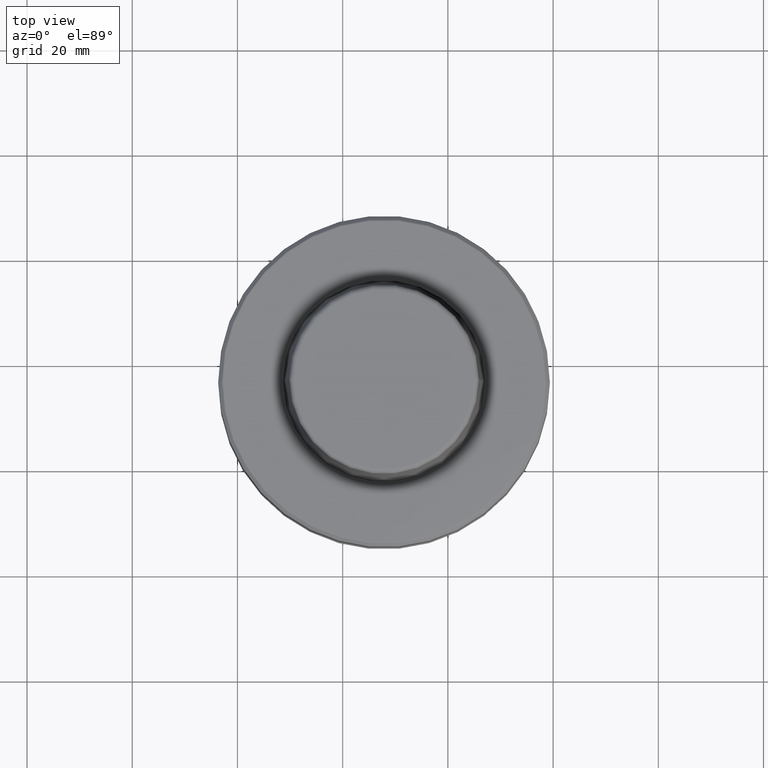
[diagram: clean part render]
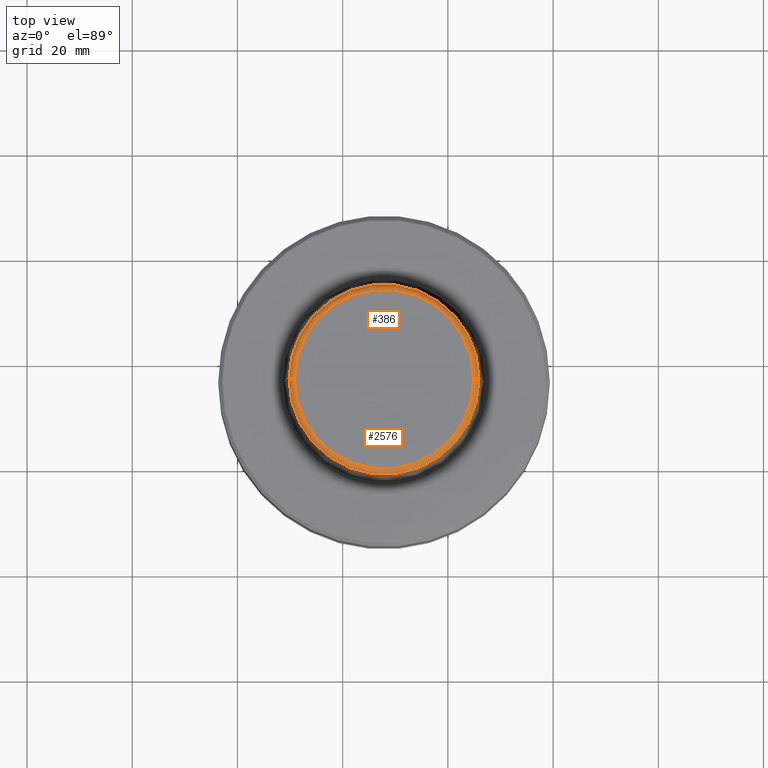
[diagram: same view with one multi-face feature highlighted, each face labeled with its STEP entity id]
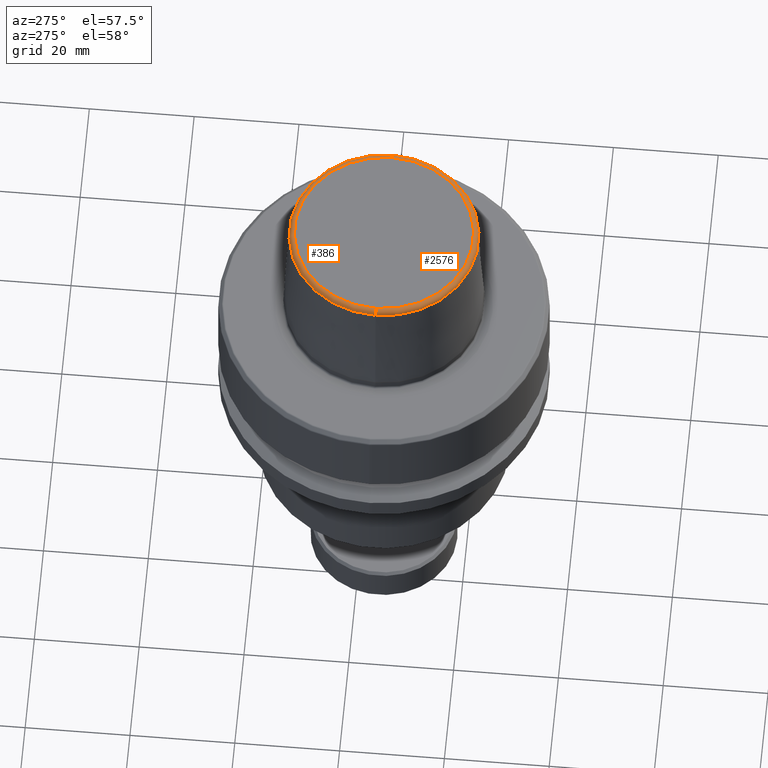
[diagram: same view with one multi-face feature highlighted, each face labeled with its STEP entity id]
A machine part, top view. The highlighted faces form ONE feature: a constant-radius fillet chain: 2 tangent blend faces with common blend radius 1 mm. The faces share edges in the B-rep.
A second angle (auxiliary view) of the same feature is appended — it is thin or edge-on in the first view.
Their STEP definitions:
[1] entity #386 (Torus):
#58 = TOROIDAL_SURFACE ( 'NONE', #2432, 17.05687731099929700, 1.000000000000000400 ) ;
#108 = CIRCLE ( 'NONE', #2308, 1.000000000000000900 ) ;
#152 = CARTESIAN_POINT ( 'NONE',  ( 4.912547605776900600, -4.286756626697751900, 87.22075645340545700 ) ) ;
#232 = ORIENTED_EDGE ( 'NONE', *, *, #1866, .T. ) ;
#358 = DIRECTION ( 'NONE',  ( 0.0000000000000000000, 0.0000000000000000000, -1.000000000000000000 ) ) ;
#377 = VERTEX_POINT ( 'NONE', #795 ) ;
#380 = ORIENTED_EDGE ( 'NONE', *, *, #2715, .F. ) ;
#386 = ADVANCED_FACE ( 'NONE', ( #2381 ), #58, .T. ) ;
#390 = VERTEX_POINT ( 'NONE', #1975 ) ;
#400 = CARTESIAN_POINT ( 'NONE',  ( 5.911295015107568500, -4.286756626697749300, 87.27079256391856200 ) ) ;
#516 = EDGE_LOOP ( 'NONE', ( #232, #1541, #380, #2919 ) ) ;
#628 = DIRECTION ( 'NONE',  ( -0.0000000000000000000, -0.0000000000000000000, 1.000000000000000000 ) ) ;
#795 = CARTESIAN_POINT ( 'NONE',  ( -29.20120701622169400, -4.286756626697750100, 88.22075645340545700 ) ) ;
#850 = VERTEX_POINT ( 'NONE', #400 ) ;
#851 = VERTEX_POINT ( 'NONE', #1989 ) ;
#897 = EDGE_CURVE ( 'NONE', #851, #377, #108, .T. ) ;
#1177 = CARTESIAN_POINT ( 'NONE',  ( -12.14432970522239700, -4.286756626697751900, 88.22075645340545700 ) ) ;
#1299 = DIRECTION ( 'NONE',  ( -0.0000000000000000000, -0.0000000000000000000, 1.000000000000000000 ) ) ;
#1306 = EDGE_CURVE ( 'NONE', #850, #390, #1364, .T. ) ;
#1344 = CARTESIAN_POINT ( 'NONE',  ( -29.20120701622169400, -4.286756626697750100, 87.22075645340545700 ) ) ;
#1364 = CIRCLE ( 'NONE', #1643, 1.000000000000000900 ) ;
#1420 = DIRECTION ( 'NONE',  ( 1.000000000000000000, 0.0000000000000000000, 0.0000000000000000000 ) ) ;
#1451 = AXIS2_PLACEMENT_3D ( 'NONE', #2649, #1299, #2876 ) ;
#1475 = DIRECTION ( 'NONE',  ( 1.000000000000000000, 0.0000000000000000000, 0.0000000000000000000 ) ) ;
#1541 = ORIENTED_EDGE ( 'NONE', *, *, #897, .T. ) ;
#1574 = CIRCLE ( 'NONE', #2267, 17.05687731099929700 ) ;
#1575 = DIRECTION ( 'NONE',  ( -1.000000000000000000, 0.0000000000000000000, 0.0000000000000000000 ) ) ;
#1643 = AXIS2_PLACEMENT_3D ( 'NONE', #152, #1735, #358 ) ;
#1735 = DIRECTION ( 'NONE',  ( 0.0000000000000000000, -1.000000000000000000, 0.0000000000000000000 ) ) ;
#1866 = EDGE_CURVE ( 'NONE', #850, #851, #2255, .T. ) ;
#1975 = CARTESIAN_POINT ( 'NONE',  ( 4.912547605776900600, -4.286756626697751900, 88.22075645340545700 ) ) ;
#1989 = CARTESIAN_POINT ( 'NONE',  ( -30.19995442555236300, -4.286756626697751900, 87.27079256391856200 ) ) ;
#2255 = CIRCLE ( 'NONE', #1451, 18.05562472032996600 ) ;
#2267 = AXIS2_PLACEMENT_3D ( 'NONE', #1177, #2766, #1420 ) ;
#2308 = AXIS2_PLACEMENT_3D ( 'NONE', #1344, #2915, #1575 ) ;
#2381 = FACE_OUTER_BOUND ( 'NONE', #516, .T. ) ;
#2432 = AXIS2_PLACEMENT_3D ( 'NONE', #2904, #628, #1475 ) ;
#2649 = CARTESIAN_POINT ( 'NONE',  ( -12.14432970522239700, -4.286756626697751900, 87.27079256391856200 ) ) ;
#2715 = EDGE_CURVE ( 'NONE', #390, #377, #1574, .T. ) ;
#2766 = DIRECTION ( 'NONE',  ( -0.0000000000000000000, -0.0000000000000000000, 1.000000000000000000 ) ) ;
#2876 = DIRECTION ( 'NONE',  ( 1.000000000000000000, 0.0000000000000000000, 0.0000000000000000000 ) ) ;
#2904 = CARTESIAN_POINT ( 'NONE',  ( -12.14432970522239700, -4.286756626697751900, 87.22075645340545700 ) ) ;
#2915 = DIRECTION ( 'NONE',  ( 1.224646799147353200E-016, 1.000000000000000000, 0.0000000000000000000 ) ) ;
#2919 = ORIENTED_EDGE ( 'NONE', *, *, #1306, .F. ) ;
[2] entity #2576 (Torus):
#74 = DIRECTION ( 'NONE',  ( 1.000000000000000000, 0.0000000000000000000, 0.0000000000000000000 ) ) ;
#108 = CIRCLE ( 'NONE', #2308, 1.000000000000000900 ) ;
#152 = CARTESIAN_POINT ( 'NONE',  ( 4.912547605776900600, -4.286756626697751900, 87.22075645340545700 ) ) ;
#213 = DIRECTION ( 'NONE',  ( 1.000000000000000000, 0.0000000000000000000, 0.0000000000000000000 ) ) ;
#227 = CIRCLE ( 'NONE', #2242, 17.05687731099929700 ) ;
#306 = AXIS2_PLACEMENT_3D ( 'NONE', #1583, #891, #1805 ) ;
#358 = DIRECTION ( 'NONE',  ( 0.0000000000000000000, 0.0000000000000000000, -1.000000000000000000 ) ) ;
#377 = VERTEX_POINT ( 'NONE', #795 ) ;
#390 = VERTEX_POINT ( 'NONE', #1975 ) ;
#400 = CARTESIAN_POINT ( 'NONE',  ( 5.911295015107568500, -4.286756626697749300, 87.27079256391856200 ) ) ;
#728 = ORIENTED_EDGE ( 'NONE', *, *, #897, .F. ) ;
#740 = FACE_OUTER_BOUND ( 'NONE', #1859, .T. ) ;
#795 = CARTESIAN_POINT ( 'NONE',  ( -29.20120701622169400, -4.286756626697750100, 88.22075645340545700 ) ) ;
#850 = VERTEX_POINT ( 'NONE', #400 ) ;
#851 = VERTEX_POINT ( 'NONE', #1989 ) ;
#891 = DIRECTION ( 'NONE',  ( -0.0000000000000000000, -0.0000000000000000000, 1.000000000000000000 ) ) ;
#897 = EDGE_CURVE ( 'NONE', #851, #377, #108, .T. ) ;
#1306 = EDGE_CURVE ( 'NONE', #850, #390, #1364, .T. ) ;
#1314 = ORIENTED_EDGE ( 'NONE', *, *, #2523, .T. ) ;
#1344 = CARTESIAN_POINT ( 'NONE',  ( -29.20120701622169400, -4.286756626697750100, 87.22075645340545700 ) ) ;
#1356 = TOROIDAL_SURFACE ( 'NONE', #306, 17.05687731099929700, 1.000000000000000400 ) ;
#1364 = CIRCLE ( 'NONE', #1643, 1.000000000000000900 ) ;
#1428 = DIRECTION ( 'NONE',  ( -0.0000000000000000000, -0.0000000000000000000, 1.000000000000000000 ) ) ;
#1567 = DIRECTION ( 'NONE',  ( -0.0000000000000000000, -0.0000000000000000000, 1.000000000000000000 ) ) ;
#1570 = CIRCLE ( 'NONE', #2324, 18.05562472032996600 ) ;
#1575 = DIRECTION ( 'NONE',  ( -1.000000000000000000, 0.0000000000000000000, 0.0000000000000000000 ) ) ;
#1583 = CARTESIAN_POINT ( 'NONE',  ( -12.14432970522239700, -4.286756626697751900, 87.22075645340545700 ) ) ;
#1643 = AXIS2_PLACEMENT_3D ( 'NONE', #152, #1735, #358 ) ;
#1723 = EDGE_CURVE ( 'NONE', #377, #390, #227, .T. ) ;
#1735 = DIRECTION ( 'NONE',  ( 0.0000000000000000000, -1.000000000000000000, 0.0000000000000000000 ) ) ;
#1805 = DIRECTION ( 'NONE',  ( 1.000000000000000000, 0.0000000000000000000, 0.0000000000000000000 ) ) ;
#1859 = EDGE_LOOP ( 'NONE', ( #728, #1314, #2866, #1955 ) ) ;
#1955 = ORIENTED_EDGE ( 'NONE', *, *, #1723, .F. ) ;
#1975 = CARTESIAN_POINT ( 'NONE',  ( 4.912547605776900600, -4.286756626697751900, 88.22075645340545700 ) ) ;
#1989 = CARTESIAN_POINT ( 'NONE',  ( -30.19995442555236300, -4.286756626697751900, 87.27079256391856200 ) ) ;
#2242 = AXIS2_PLACEMENT_3D ( 'NONE', #2773, #1428, #74 ) ;
#2308 = AXIS2_PLACEMENT_3D ( 'NONE', #1344, #2915, #1575 ) ;
#2324 = AXIS2_PLACEMENT_3D ( 'NONE', #2910, #1567, #213 ) ;
#2523 = EDGE_CURVE ( 'NONE', #851, #850, #1570, .T. ) ;
#2576 = ADVANCED_FACE ( 'NONE', ( #740 ), #1356, .T. ) ;
#2773 = CARTESIAN_POINT ( 'NONE',  ( -12.14432970522239700, -4.286756626697751900, 88.22075645340545700 ) ) ;
#2866 = ORIENTED_EDGE ( 'NONE', *, *, #1306, .T. ) ;
#2910 = CARTESIAN_POINT ( 'NONE',  ( -12.14432970522239700, -4.286756626697751900, 87.27079256391856200 ) ) ;
#2915 = DIRECTION ( 'NONE',  ( 1.224646799147353200E-016, 1.000000000000000000, 0.0000000000000000000 ) ) ;